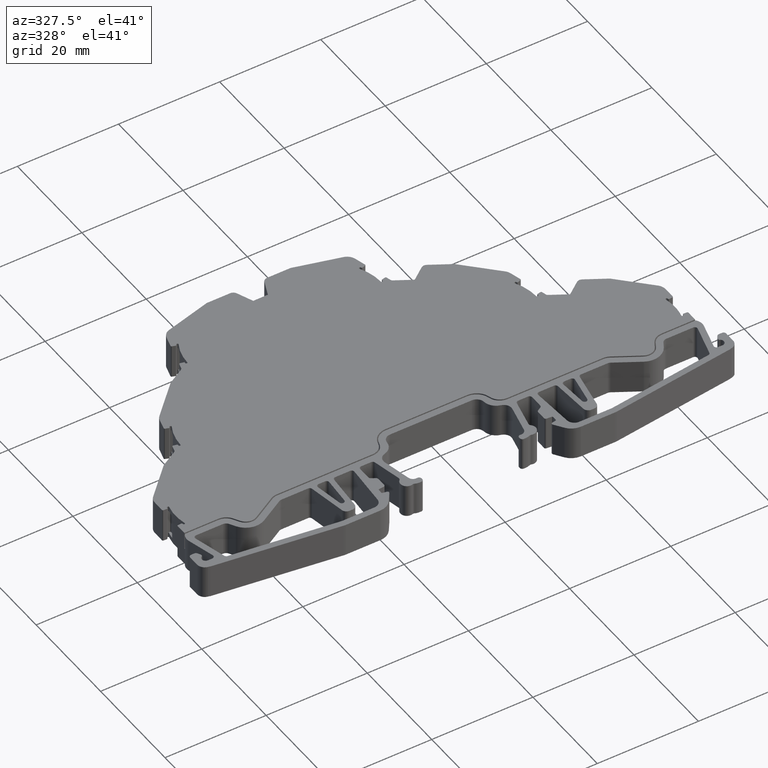
[diagram: clean part render]
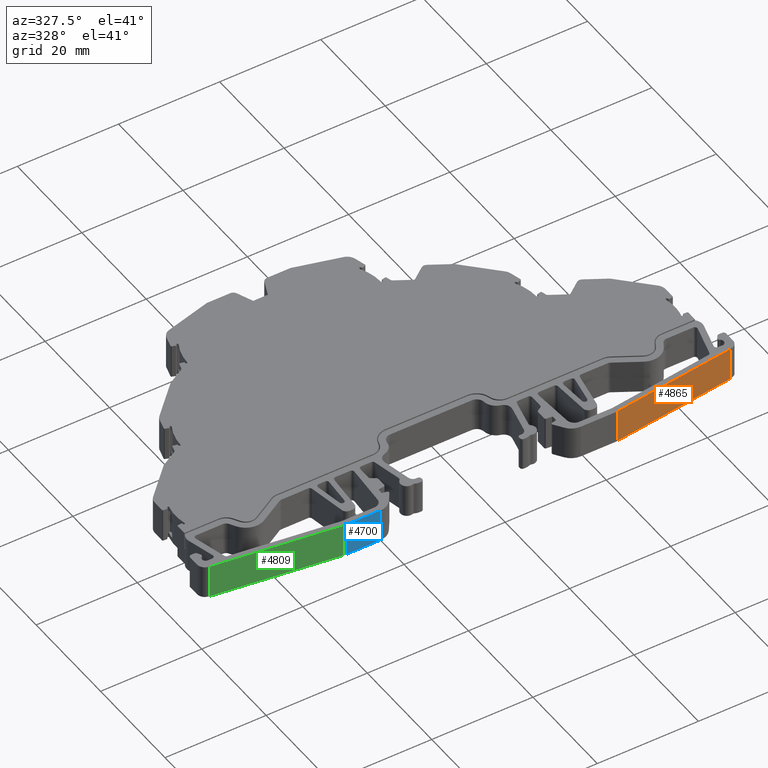
[diagram: same view with three faces highlighted in distinct colors, each labeled with its STEP entity id]
A machine part, auxiliary view with three faces highlighted in distinct colors.
Their STEP definitions:

[orange] entity #4865 — the highlighted planar face has unit normal (0.1305, -0.9914, 0).
#898 = CARTESIAN_POINT ( 'NONE',  ( 310.1003096507262200, 8.702286272991465000, -0.3499999999999996400 ) ) ;
#922 = VERTEX_POINT ( 'NONE', #2901 ) ;
#944 = EDGE_LOOP ( 'NONE', ( #18189, #18237, #18236, #18121 ) ) ;
#1054 = VERTEX_POINT ( 'NONE', #898 ) ;
#2901 = CARTESIAN_POINT ( 'NONE',  ( 285.6974205706520100, 5.489584977254709800, -0.3499999999999996400 ) ) ;
#3397 = DIRECTION ( 'NONE',  ( 0.9914448613738271500, 0.1305261922199236200, 0.0000000000000000000 ) ) ;
#3405 = LINE ( 'NONE', #3420, #22308 ) ;
#3420 = CARTESIAN_POINT ( 'NONE',  ( 285.6974205706520100, 5.489584977254709800, -0.3499999999999996400 ) ) ;
#4467 = CARTESIAN_POINT ( 'NONE',  ( 310.1003096507262200, 8.702286272991465000, -29.27624599594290100 ) ) ;
#4480 = LINE ( 'NONE', #4467, #12537 ) ;
#4481 = DIRECTION ( 'NONE',  ( 0.0000000000000000000, 0.0000000000000000000, 1.000000000000000000 ) ) ;
#4865 = ADVANCED_FACE ( 'NONE', ( #9002 ), #8993, .T. ) ;
#5088 = EDGE_CURVE ( 'NONE', #922, #1054, #3405, .T. ) ;
#5210 = EDGE_CURVE ( 'NONE', #1054, #7617, #4480, .T. ) ;
#6048 = EDGE_CURVE ( 'NONE', #922, #7581, #14947, .T. ) ;
#6188 = EDGE_CURVE ( 'NONE', #7581, #7617, #14722, .T. ) ;
#7581 = VERTEX_POINT ( 'NONE', #13869 ) ;
#7617 = VERTEX_POINT ( 'NONE', #13942 ) ;
#8967 = DIRECTION ( 'NONE',  ( 0.1305261922199236200, -0.9914448613738272600, 0.0000000000000000000 ) ) ;
#8993 = PLANE ( 'NONE',  #22744 ) ;
#8998 = CARTESIAN_POINT ( 'NONE',  ( 285.6974205706520100, 5.489584977254709800, -29.27624599594290100 ) ) ;
#8999 = DIRECTION ( 'NONE',  ( 0.9914448613738272600, 0.1305261922199236200, 0.0000000000000000000 ) ) ;
#9002 = FACE_OUTER_BOUND ( 'NONE', #944, .T. ) ;
#12537 = VECTOR ( 'NONE', #4481, 1000.000000000000000 ) ;
#13578 = VECTOR ( 'NONE', #15009, 1000.000000000000000 ) ;
#13869 = CARTESIAN_POINT ( 'NONE',  ( 285.6974205706520100, 5.489584977254709800, 6.200000000000001100 ) ) ;
#13942 = CARTESIAN_POINT ( 'NONE',  ( 310.1003096507262200, 8.702286272991465000, 6.200000000000001100 ) ) ;
#14681 = DIRECTION ( 'NONE',  ( 0.9914448613738271500, 0.1305261922199236200, 0.0000000000000000000 ) ) ;
#14699 = CARTESIAN_POINT ( 'NONE',  ( 212.7409454625880900, -4.115317185885001700, 6.200000000000000200 ) ) ;
#14722 = LINE ( 'NONE', #14699, #17186 ) ;
#14947 = LINE ( 'NONE', #15023, #13578 ) ;
#15009 = DIRECTION ( 'NONE',  ( 0.0000000000000000000, 0.0000000000000000000, 1.000000000000000000 ) ) ;
#15023 = CARTESIAN_POINT ( 'NONE',  ( 285.6974205706520100, 5.489584977254709800, -29.27624599594290100 ) ) ;
#17186 = VECTOR ( 'NONE', #14681, 1000.000000000000200 ) ;
#18121 = ORIENTED_EDGE ( 'NONE', *, *, #6048, .F. ) ;
#18189 = ORIENTED_EDGE ( 'NONE', *, *, #5088, .T. ) ;
#18236 = ORIENTED_EDGE ( 'NONE', *, *, #6188, .F. ) ;
#18237 = ORIENTED_EDGE ( 'NONE', *, *, #5210, .T. ) ;
#22308 = VECTOR ( 'NONE', #3397, 1000.000000000000200 ) ;
#22744 = AXIS2_PLACEMENT_3D ( 'NONE', #8998, #8967, #8999 ) ;

[blue] entity #4700 — the highlighted planar face has unit normal (-0, 1, 0).
#609 = VERTEX_POINT ( 'NONE', #21503 ) ;
#613 = VERTEX_POINT ( 'NONE', #21542 ) ;
#726 = CARTESIAN_POINT ( 'NONE',  ( 238.8193135171410100, 5.453653395024811200, 6.200000000000000200 ) ) ;
#801 = CARTESIAN_POINT ( 'NONE',  ( 232.1059090062840100, 5.453653395024800500, 6.200000000000001100 ) ) ;
#1012 = VERTEX_POINT ( 'NONE', #726 ) ;
#1018 = VERTEX_POINT ( 'NONE', #801 ) ;
#3781 = LINE ( 'NONE', #3804, #22380 ) ;
#3804 = CARTESIAN_POINT ( 'NONE',  ( 238.8193135171410100, 5.453653395024811200, -0.3500000000000000300 ) ) ;
#3822 = DIRECTION ( 'NONE',  ( -1.000000000000000000, -2.781146818449819700E-017, 0.0000000000000000000 ) ) ;
#4082 = PLANE ( 'NONE',  #22580 ) ;
#4086 = DIRECTION ( 'NONE',  ( -2.781146818449819700E-017, 1.000000000000000000, 0.0000000000000000000 ) ) ;
#4095 = FACE_OUTER_BOUND ( 'NONE', #21356, .T. ) ;
#4100 = CARTESIAN_POINT ( 'NONE',  ( 238.8193135171410100, 5.453653395024811200, 2.899999999999999900 ) ) ;
#4120 = DIRECTION ( 'NONE',  ( -1.000000000000000000, -2.781146818449819700E-017, 0.0000000000000000000 ) ) ;
#4700 = ADVANCED_FACE ( 'NONE', ( #4095 ), #4082, .F. ) ;
#5136 = EDGE_CURVE ( 'NONE', #609, #613, #3781, .T. ) ;
#5925 = EDGE_CURVE ( 'NONE', #1012, #609, #15621, .T. ) ;
#5926 = EDGE_CURVE ( 'NONE', #613, #1018, #15626, .T. ) ;
#6179 = EDGE_CURVE ( 'NONE', #1018, #1012, #14720, .T. ) ;
#13445 = VECTOR ( 'NONE', #15661, 1000.000000000000000 ) ;
#13481 = VECTOR ( 'NONE', #15655, 1000.000000000000000 ) ;
#13572 = VECTOR ( 'NONE', #14709, 1000.000000000000000 ) ;
#14689 = CARTESIAN_POINT ( 'NONE',  ( 238.8193135171410100, 5.453653395024811200, 6.200000000000000200 ) ) ;
#14709 = DIRECTION ( 'NONE',  ( 1.000000000000000000, 2.781146818449819700E-017, 0.0000000000000000000 ) ) ;
#14720 = LINE ( 'NONE', #14689, #13572 ) ;
#15621 = LINE ( 'NONE', #15624, #13481 ) ;
#15624 = CARTESIAN_POINT ( 'NONE',  ( 238.8193135171410100, 5.453653395024811200, 2.899999999999999900 ) ) ;
#15626 = LINE ( 'NONE', #15632, #13445 ) ;
#15632 = CARTESIAN_POINT ( 'NONE',  ( 232.1059090062840100, 5.453653395024800500, -29.27624599594290100 ) ) ;
#15655 = DIRECTION ( 'NONE',  ( 0.0000000000000000000, 0.0000000000000000000, -1.000000000000000000 ) ) ;
#15661 = DIRECTION ( 'NONE',  ( 0.0000000000000000000, 0.0000000000000000000, 1.000000000000000000 ) ) ;
#18790 = ORIENTED_EDGE ( 'NONE', *, *, #5926, .F. ) ;
#18845 = ORIENTED_EDGE ( 'NONE', *, *, #5136, .F. ) ;
#18853 = ORIENTED_EDGE ( 'NONE', *, *, #6179, .F. ) ;
#18858 = ORIENTED_EDGE ( 'NONE', *, *, #5925, .F. ) ;
#21356 = EDGE_LOOP ( 'NONE', ( #18853, #18790, #18845, #18858 ) ) ;
#21503 = CARTESIAN_POINT ( 'NONE',  ( 238.8193135171410100, 5.453653395024811200, -0.3500000000000000300 ) ) ;
#21542 = CARTESIAN_POINT ( 'NONE',  ( 232.1059090062840100, 5.453653395024800500, -0.3499999999999996400 ) ) ;
#22380 = VECTOR ( 'NONE', #3822, 1000.000000000000000 ) ;
#22580 = AXIS2_PLACEMENT_3D ( 'NONE', #4100, #4086, #4120 ) ;

[green] entity #4809 — the highlighted planar face has unit normal (-0.1305, -0.9914, 0).
#618 = VERTEX_POINT ( 'NONE', #21521 ) ;
#769 = CARTESIAN_POINT ( 'NONE',  ( 207.1548083937462600, 8.702286473783194900, 6.200000000000001100 ) ) ;
#894 = EDGE_LOOP ( 'NONE', ( #19390, #18126, #18213, #18153 ) ) ;
#988 = VERTEX_POINT ( 'NONE', #769 ) ;
#1015 = CARTESIAN_POINT ( 'NONE',  ( 231.5576989989600100, 5.489584977254800400, 6.200000000000001100 ) ) ;
#1122 = VERTEX_POINT ( 'NONE', #1015 ) ;
#3643 = LINE ( 'NONE', #3663, #22340 ) ;
#3645 = DIRECTION ( 'NONE',  ( 0.9914448613738104900, -0.1305261922200518800, 0.0000000000000000000 ) ) ;
#3663 = CARTESIAN_POINT ( 'NONE',  ( 231.5576989989600100, 5.489584977254800400, -0.3499999999999996400 ) ) ;
#4508 = DIRECTION ( 'NONE',  ( 0.0000000000000000000, 0.0000000000000000000, 1.000000000000000000 ) ) ;
#4517 = CARTESIAN_POINT ( 'NONE',  ( 207.1548083937462600, 8.702286473783194900, -29.27624599594290100 ) ) ;
#4523 = LINE ( 'NONE', #4517, #12611 ) ;
#4809 = ADVANCED_FACE ( 'NONE', ( #8681 ), #8698, .T. ) ;
#5122 = EDGE_CURVE ( 'NONE', #21896, #618, #3643, .T. ) ;
#5215 = EDGE_CURVE ( 'NONE', #21896, #988, #4523, .T. ) ;
#6036 = EDGE_CURVE ( 'NONE', #618, #1122, #14975, .T. ) ;
#6161 = EDGE_CURVE ( 'NONE', #988, #1122, #14628, .T. ) ;
#8677 = CARTESIAN_POINT ( 'NONE',  ( 231.5576989989600100, 5.489584977254800400, -29.27624599594290100 ) ) ;
#8678 = DIRECTION ( 'NONE',  ( -0.1305261922200518800, -0.9914448613738104900, 0.0000000000000000000 ) ) ;
#8681 = FACE_OUTER_BOUND ( 'NONE', #894, .T. ) ;
#8685 = DIRECTION ( 'NONE',  ( 0.9914448613738104900, -0.1305261922200518800, 0.0000000000000000000 ) ) ;
#8698 = PLANE ( 'NONE',  #22673 ) ;
#11256 = CARTESIAN_POINT ( 'NONE',  ( 207.1548083937462600, 8.702286473783194900, -0.3499999999999996400 ) ) ;
#12493 = VECTOR ( 'NONE', #14653, 999.9999999999998900 ) ;
#12611 = VECTOR ( 'NONE', #4508, 1000.000000000000000 ) ;
#13486 = VECTOR ( 'NONE', #14955, 1000.000000000000000 ) ;
#14628 = LINE ( 'NONE', #14637, #12493 ) ;
#14637 = CARTESIAN_POINT ( 'NONE',  ( 208.9331660619917000, 8.468161245154986400, 6.200000000000000200 ) ) ;
#14653 = DIRECTION ( 'NONE',  ( 0.9914448613738104900, -0.1305261922200518800, 0.0000000000000000000 ) ) ;
#14955 = DIRECTION ( 'NONE',  ( 0.0000000000000000000, 0.0000000000000000000, 1.000000000000000000 ) ) ;
#14962 = CARTESIAN_POINT ( 'NONE',  ( 231.5576989989600100, 5.489584977254800400, -29.27624599594290100 ) ) ;
#14975 = LINE ( 'NONE', #14962, #13486 ) ;
#18126 = ORIENTED_EDGE ( 'NONE', *, *, #5122, .T. ) ;
#18153 = ORIENTED_EDGE ( 'NONE', *, *, #6161, .F. ) ;
#18213 = ORIENTED_EDGE ( 'NONE', *, *, #6036, .T. ) ;
#19390 = ORIENTED_EDGE ( 'NONE', *, *, #5215, .F. ) ;
#21521 = CARTESIAN_POINT ( 'NONE',  ( 231.5576989989600100, 5.489584977254800400, -0.3499999999999996400 ) ) ;
#21896 = VERTEX_POINT ( 'NONE', #11256 ) ;
#22340 = VECTOR ( 'NONE', #3645, 999.9999999999998900 ) ;
#22673 = AXIS2_PLACEMENT_3D ( 'NONE', #8677, #8678, #8685 ) ;